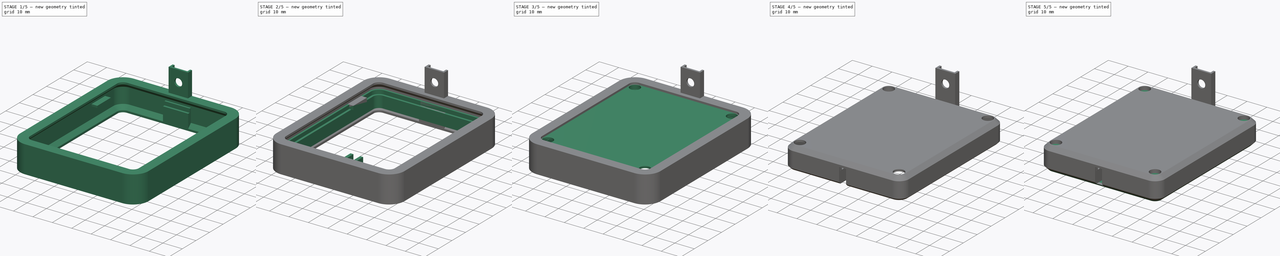
[diagram: build sequence overview — one tinted view per stage of 5, left to right]
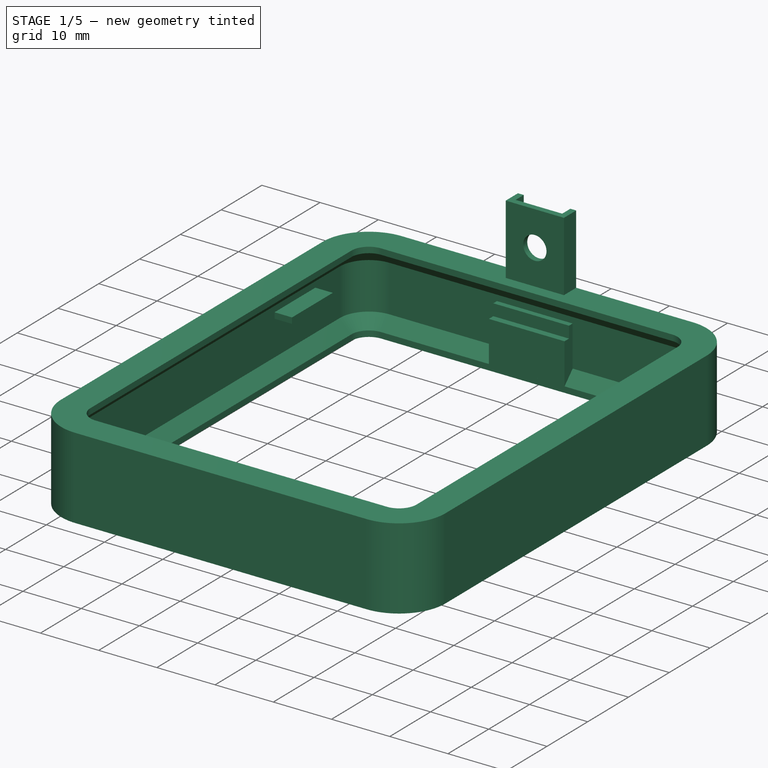
[diagram: stage 1 of 5 — iso view after this stage's code; geometry added in this stage tinted green]
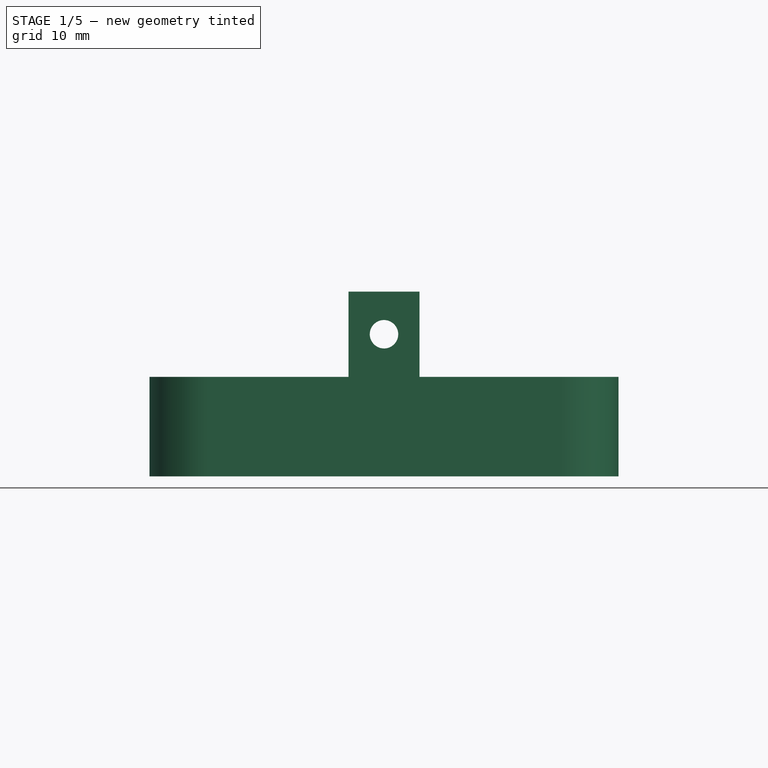
[diagram: stage 1 of 5 — front view after this stage's code; geometry added in this stage tinted green]
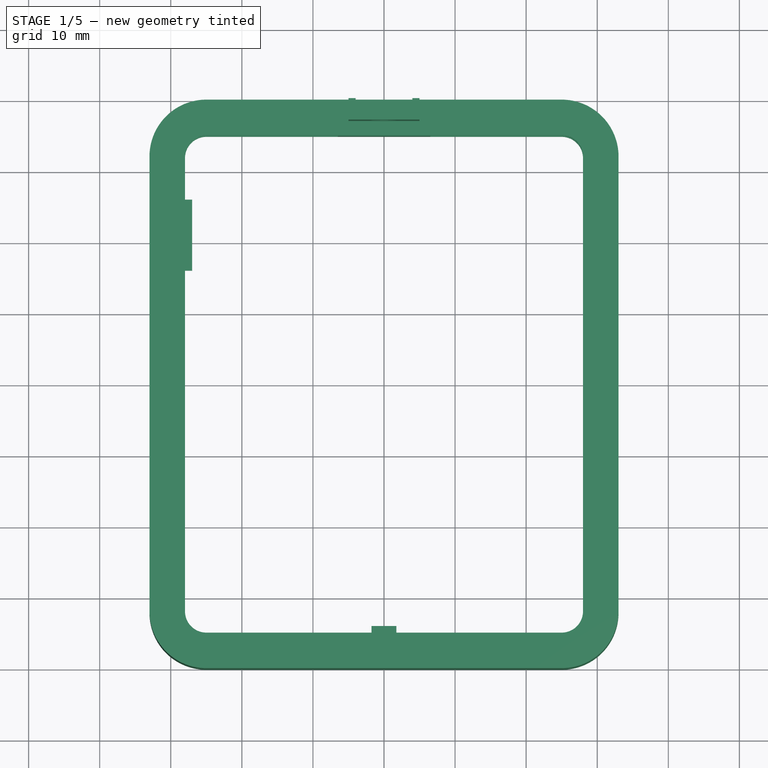
[diagram: stage 1 of 5 — top view after this stage's code; geometry added in this stage tinted green]
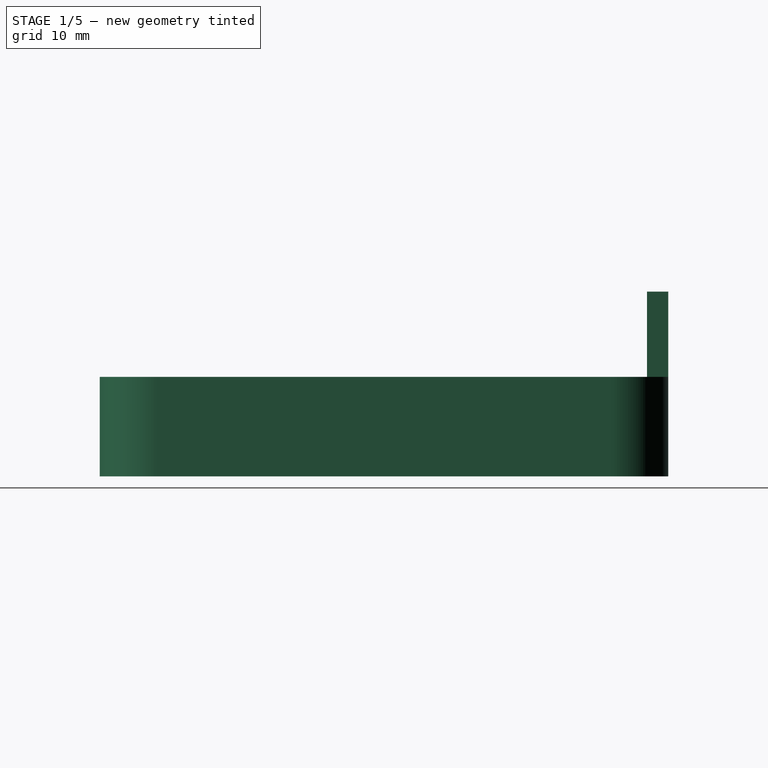
[diagram: stage 1 of 5 — right view after this stage's code; geometry added in this stage tinted green]
FCSTD DOCUMENT  (FreeCAD 0.19R24291 (Git))
Label: servos
License: All rights reserved
LicenseURL: http://en.wikipedia.org/wiki/All_rights_reserved
objects: Sketcher::SketchObject×20, PartDesign::FeatureBase×15, PartDesign::Body×15, Part::Extrusion×13, Part::Cut×9, Part::Sweep×4, Part::Compound×4, Part::MultiFuse×3, Spreadsheet::Sheet×1, Part::Revolution×1, Part::Box×1
note: 85 computed .brp shape members not serialized (recipe doc carries the construction recipe); baked Part::Feature solids carry a one-line shape summary decoded from their .brp

FEATURE [Sketcher::SketchObject] Sketch040  label="profile"
  FullyConstrained = true
  Placement = pos=(0,0,0) rot=(1,0,0;1.5708rad)
  sketch-geometry (8):
    g0: LineSegment StartX=-28 StartY=11 StartZ=0 EndX=-30 EndY=9 EndZ=0
    g1: LineSegment StartX=-30 StartY=9 StartZ=0 EndX=-30 EndY=1 EndZ=0
    g2: LineSegment StartX=-30 StartY=1 StartZ=0 EndX=-28 EndY=-1 EndZ=0
    g3: LineSegment StartX=-28 StartY=-1 StartZ=0 EndX=-28 EndY=-2 EndZ=0
    g4: LineSegment StartX=-28 StartY=-2 StartZ=0 EndX=-33 EndY=-2 EndZ=0
    g5: LineSegment StartX=-33 StartY=-2 StartZ=0 EndX=-33 EndY=12 EndZ=0
    g6: LineSegment StartX=-33 StartY=12 StartZ=0 EndX=-28 EndY=12 EndZ=0
    g7: LineSegment StartX=-28 StartY=12 StartZ=0 EndX=-28 EndY=11 EndZ=0
  constraints (24):
    c: Coincident(g0,g1)
    c: Vertical(g1)
    c: Coincident(g1,g2)
    c: Coincident(g2,g3)
    c: Vertical(g3)
    c: Coincident(g3,g4)
    c: Horizontal(g4)
    c: Coincident(g4,g5)
    c: Vertical(g5)
    c: Coincident(g5,g6)
    c: Horizontal(g6)
    c: Coincident(g6,g7)
    c: Coincident(g7,g0)
    c: Vertical(g7)
    c: DistanceY(g7,g7) = 1
    c: DistanceY(g3,g3) = 1
    c: DistanceX(g4,g4) = 5
    c: DistanceX(g0,g0) = 2
    c: DistanceY(g0,g0) = 2
    c: DistanceY(g2,g1) = 2
    c: DistanceX(g1,g2) = 2
    c: DistanceX(g3) = -28
    c: DistanceY(g3) = -2
    c: DistanceY(g5,g5) = 14
FEATURE [Sketcher::SketchObject] Sketch041  label="path002"
  FullyConstrained = false
  Placement = pos=(0,0,-2) rot=(1,0,0;3.14159rad)
  sketch-geometry (8):
    g0: LineSegment StartX=-25 StartY=35 StartZ=0 EndX=25 EndY=35 EndZ=0
    g1: LineSegment StartX=28 StartY=32 StartZ=0 EndX=28 EndY=-32 EndZ=0
    g2: LineSegment StartX=25 StartY=-35 StartZ=0 EndX=-25 EndY=-35 EndZ=0
    g3: LineSegment StartX=-28 StartY=-32 StartZ=0 EndX=-28 EndY=32 EndZ=0
    g4: ArcOfCircle CenterX=-25 CenterY=32 CenterZ=0 NormalX=0 NormalY=0 NormalZ=1 AngleXU=0 Radius=3 StartAngle=1.5708 EndAngle=3.14159
    g5: ArcOfCircle CenterX=25 CenterY=-32 CenterZ=0 NormalX=0 NormalY=0 NormalZ=1 AngleXU=0 Radius=3 StartAngle=4.71239 EndAngle=6.28319
    g6: ArcOfCircle CenterX=25 CenterY=32 CenterZ=0 NormalX=0 NormalY=0 NormalZ=1 AngleXU=0 Radius=3 StartAngle=0 EndAngle=1.5708
    g7: ArcOfCircle CenterX=-25 CenterY=-32 CenterZ=0 NormalX=0 NormalY=0 NormalZ=1 AngleXU=0 Radius=3 StartAngle=3.14159 EndAngle=4.71239
  constraints (26):
    c: Horizontal(g0)
    c: Horizontal(g2)
    c: Vertical(g1)
    c: Vertical(g3)
    c: Coincident(g3,g4)
    c: Coincident(g0,g4)
    c: Coincident(g5,g1)
    c: Coincident(g5,g2)
    c: Radius(g5) = 3
    c: Radius(g4) = 3
    c: Coincident(g6,g0)
    c: Coincident(g6,g1)
    c: Radius(g6) = 3
    c: Coincident(g7,g3)
    c: Coincident(g7,g2)
    c: Radius(g7) = 3
    c: Horizontal(g7,g5)
    c: Vertical(g4,g7)
    c: Horizontal(g1,g5)
    c: Vertical(g2,g5)
    c: Horizontal(g7,g3)
    c: Horizontal(g6,g1)
    c: Vertical(g0,g6)
    c: Vertical(g4,g0)
    c: DistanceX(g3) = -28
    c: DistanceX(g1) = 28
FEATURE [Part::Sweep] Sweep002  label="bevel"
  Frenet = false
  Sections = -> [Sketch040]
  Solid = true
  Spine = -> Sketch041
  Transition = 1
FEATURE [Sketcher::SketchObject] Sketch044
  FullyConstrained = true
  Placement = pos=(0,0,7) rot=(0,0,1;0rad)
  sketch-geometry (4):
    g0: LineSegment StartX=-31 StartY=26 StartZ=0 EndX=-27 EndY=26 EndZ=0
    g1: LineSegment StartX=-27 StartY=26 StartZ=0 EndX=-27 EndY=16 EndZ=0
    g2: LineSegment StartX=-27 StartY=16 StartZ=0 EndX=-31 EndY=16 EndZ=0
    g3: LineSegment StartX=-31 StartY=16 StartZ=0 EndX=-31 EndY=26 EndZ=0
  constraints (12):
    c: Coincident(g0,g1)
    c: Coincident(g1,g2)
    c: Coincident(g2,g3)
    c: Coincident(g3,g0)
    c: Horizontal(g0)
    c: Horizontal(g2)
    c: Vertical(g1)
    c: Vertical(g3)
    c: DistanceY(g1,g1) = 10
    c: DistanceX(g0,g0) = 4
    c: DistanceX(g0) = -27
    c: DistanceY(g0) = 26
FEATURE [Part::Extrusion] Extrude041
  Base = -> Sketch044
  Dir = (0,0,1)
  DirMode = 2
  FaceMakerClass = Part::FaceMakerBullseye
  LengthFwd = 1
  LengthRev = 0
  Solid = true
  Symmetric = false
FEATURE [Sketcher::SketchObject] Sketch048
  FullyConstrained = true
  sketch-geometry (4):
    g0: LineSegment StartX=-1.75 StartY=-34 StartZ=0 EndX=1.75 EndY=-34 EndZ=0
    g1: LineSegment StartX=1.75 StartY=-34 StartZ=0 EndX=1.75 EndY=-38 EndZ=0
    g2: LineSegment StartX=1.75 StartY=-38 StartZ=0 EndX=-1.75 EndY=-38 EndZ=0
    g3: LineSegment StartX=-1.75 StartY=-38 StartZ=0 EndX=-1.75 EndY=-34 EndZ=0
  constraints (12):
    c: Coincident(g0,g1)
    c: Coincident(g1,g2)
    c: Coincident(g2,g3)
    c: Coincident(g3,g0)
    c: Horizontal(g0)
    c: Horizontal(g2)
    c: Vertical(g1)
    c: Vertical(g3)
    c: DistanceX(g0) = 1.75
    c: DistanceX(g0,g0) = 3.5
    c: DistanceY(g0) = -34
    c: DistanceY(g1,g1) = 4
FEATURE [Part::Extrusion] Extrude045
  Base = -> Sketch048
  Dir = (0,0,1)
  DirMode = 2
  FaceMakerClass = Part::FaceMakerBullseye
  LengthFwd = 8
  LengthRev = 0
  Solid = true
  Symmetric = false
FEATURE [PartDesign::FeatureBase] Clone
  BaseFeature = -> Extrude045
FEATURE [Sketcher::SketchObject] Sketch049
  FullyConstrained = true
  Placement = pos=(0,0,-1) rot=(0,0,1;0rad)
  sketch-geometry (8):
    g0: LineSegment StartX=-5.5 StartY=40 StartZ=0 EndX=-5.5 EndY=37 EndZ=0
    g1: LineSegment StartX=-5.5 StartY=37 StartZ=0 EndX=5.5 EndY=37 EndZ=0
    g2: LineSegment StartX=5.5 StartY=37 StartZ=0 EndX=5.5 EndY=40 EndZ=0
    g3: LineSegment StartX=5.5 StartY=40 StartZ=0 EndX=6.5 EndY=40 EndZ=0
    g4: LineSegment StartX=6.5 StartY=40 StartZ=0 EndX=6.5 EndY=35 EndZ=0
    g5: LineSegment StartX=6.5 StartY=35 StartZ=0 EndX=-6.5 EndY=35 EndZ=0
    g6: LineSegment StartX=-6.5 StartY=35 StartZ=0 EndX=-6.5 EndY=40 EndZ=0
    g7: LineSegment StartX=-6.5 StartY=40 StartZ=0 EndX=-5.5 EndY=40 EndZ=0
  constraints (24):
    c: Vertical(g0)
    c: Coincident(g0,g1)
    c: Horizontal(g1)
    c: Coincident(g1,g2)
    c: Vertical(g2)
    c: Coincident(g2,g3)
    c: Horizontal(g3)
    c: Coincident(g3,g4)
    c: Vertical(g4)
    c: Coincident(g4,g5)
    c: Horizontal(g5)
    c: Coincident(g5,g6)
    c: Vertical(g6)
    c: Coincident(g6,g7)
    c: Coincident(g7,g0)
    c: Horizontal(g7)
    c: DistanceX(g3,g3) = 1
    c: DistanceX(g7,g7) = 1
    c: Horizontal(g0,g2)
    c: DistanceX(g0,g2) = 11
    c: DistanceX(g2) = 5.5
    c: DistanceY(g2,g2) = 3
    c: DistanceY(g4,g4) = 5
    c: DistanceY(g0) = 37
FEATURE [Part::Extrusion] Extrude046
  Base = -> Sketch049
  Dir = (0,0,1)
  DirMode = 2
  FaceMakerClass = Part::FaceMakerBullseye
  LengthFwd = 9
  LengthRev = 0
  Solid = true
  Symmetric = false
FEATURE [Sketcher::SketchObject] Sketch050
  FullyConstrained = true
  Placement = pos=(0,0,0) rot=(0.57735,0.57735,0.57735;2.0944rad)
  sketch-geometry (4):
    g0: LineSegment StartX=36.1 StartY=6 StartZ=0 EndX=34.1 EndY=6 EndZ=0
    g1: LineSegment StartX=34.1 StartY=6 StartZ=0 EndX=34.1 EndY=9 EndZ=0
    g2: LineSegment StartX=34.1 StartY=9 StartZ=0 EndX=36.1 EndY=9 EndZ=0
    g3: LineSegment StartX=36.1 StartY=9 StartZ=0 EndX=36.1 EndY=6 EndZ=0
  constraints (12):
    c: Coincident(g0,g1)
    c: Coincident(g1,g2)
    c: Coincident(g2,g3)
    c: Coincident(g3,g0)
    c: Horizontal(g0)
    c: Horizontal(g2)
    c: Vertical(g1)
    c: Vertical(g3)
    c: DistanceX(g0) = 36.1
    c: DistanceX(g0,g0) = 2
    c: DistanceY(g3,g3) = 3
    c: DistanceY(g0) = 6
FEATURE [Part::Extrusion] Extrude047
  Base = -> Sketch050
  Dir = (1,0,0)
  DirMode = 2
  FaceMakerClass = Part::FaceMakerBullseye
  LengthFwd = 7
  LengthRev = 7
  Solid = true
  Symmetric = false
FEATURE [Part::Cut] Cut040
  Base = -> Extrude046
  Tool = -> Extrude047
FEATURE [Sketcher::SketchObject] Sketch051
  FullyConstrained = true
  Placement = pos=(0,0,-1) rot=(0,0,1;0rad)
  sketch-geometry (8):
    g0: LineSegment StartX=-5 StartY=40 StartZ=0 EndX=-5 EndY=37 EndZ=0
    g1: LineSegment StartX=-5 StartY=37 StartZ=0 EndX=5 EndY=37 EndZ=0
    g2: LineSegment StartX=5 StartY=37 StartZ=0 EndX=5 EndY=40 EndZ=0
    g3: LineSegment StartX=5 StartY=40 StartZ=0 EndX=4 EndY=40 EndZ=0
    g4: LineSegment StartX=4 StartY=40 StartZ=0 EndX=4 EndY=38 EndZ=0
    g5: LineSegment StartX=4 StartY=38 StartZ=0 EndX=-4 EndY=38 EndZ=0
    g6: LineSegment StartX=-4 StartY=38 StartZ=0 EndX=-4 EndY=40 EndZ=0
    g7: LineSegment StartX=-4 StartY=40 StartZ=0 EndX=-5 EndY=40 EndZ=0
  constraints (24):
    c: Vertical(g0)
    c: Coincident(g0,g1)
    c: Horizontal(g1)
    c: Coincident(g1,g2)
    c: Vertical(g2)
    c: Coincident(g2,g3)
    c: Horizontal(g3)
    c: Coincident(g3,g4)
    c: Vertical(g4)
    c: Coincident(g4,g5)
    c: Horizontal(g5)
    c: Coincident(g5,g6)
    c: Vertical(g6)
    c: Coincident(g6,g7)
    c: Coincident(g7,g0)
    c: Horizontal(g7)
    c: DistanceX(g3,g3) = 1
    c: DistanceX(g7,g7) = 1
    c: DistanceX(g4) = 4
    c: DistanceX(g5,g5) = 8
    c: DistanceY(g1) = 37
    c: DistanceY(g2,g2) = 3
    c: Horizontal(g3,g6)
    c: DistanceY(g1,g4) = 1
FEATURE [Part::Extrusion] Extrude048
  Base = -> Sketch051
  Dir = (0,0,1)
  DirMode = 2
  FaceMakerClass = Part::FaceMakerBullseye
  LengthFwd = 25
  LengthRev = 0
  Solid = true
  Symmetric = false
FEATURE [Sketcher::SketchObject] Sketch052
  FullyConstrained = true
  Placement = pos=(0,35,0) rot=(1,0,0;1.5708rad)
  sketch-geometry (1):
    g0: Circle CenterX=0 CenterY=18 CenterZ=0 NormalX=0 NormalY=0 NormalZ=1 AngleXU=0 Radius=2
  constraints (3):
    c: PointOnObject(g0,g-2)
    c: Radius(g0) = 2
    c: DistanceY(g0) = 18
FEATURE [Part::Extrusion] Extrude049
  Base = -> Sketch052
  Dir = (0,-1,-2e-16)
  DirMode = 2
  FaceMakerClass = Part::FaceMakerBullseye
  LengthFwd = 0
  LengthRev = 5
  Solid = true
  Symmetric = false
FEATURE [Part::Cut] Cut041  label="hook"
  Base = -> Extrude048
  Tool = -> Extrude049
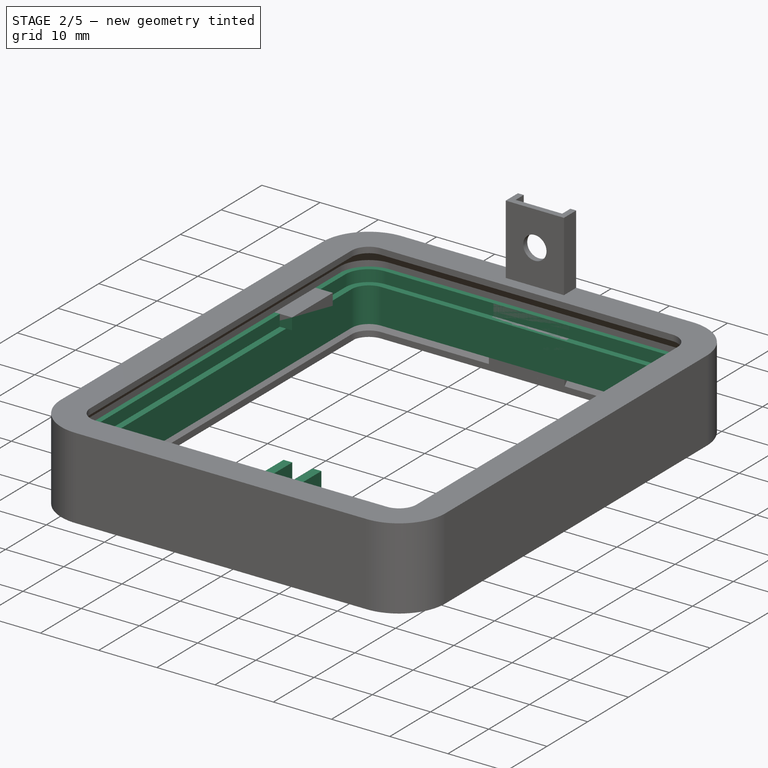
[diagram: stage 2 of 5 — iso view after this stage's code; geometry added in this stage tinted green]
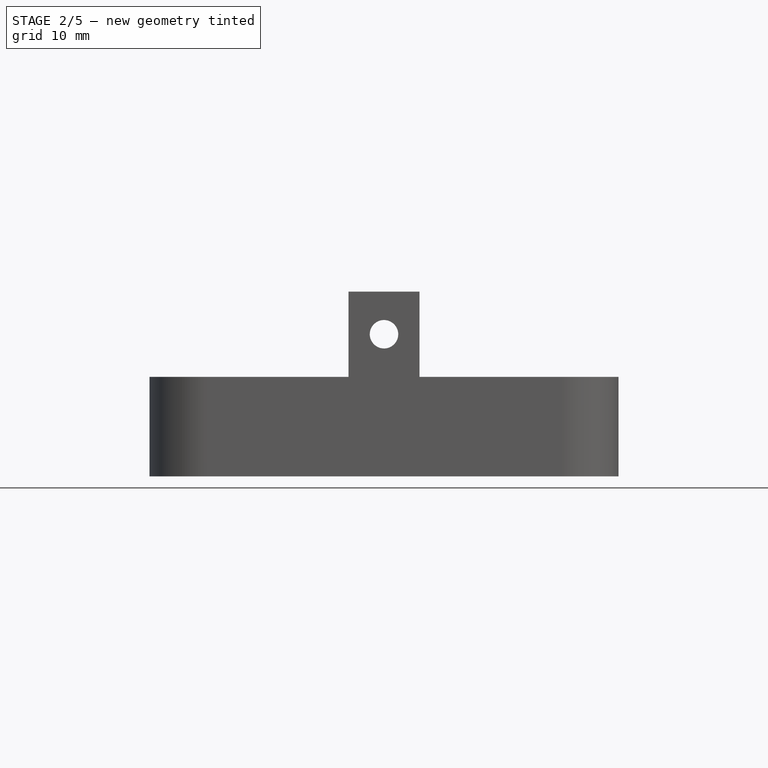
[diagram: stage 2 of 5 — front view after this stage's code; geometry added in this stage tinted green]
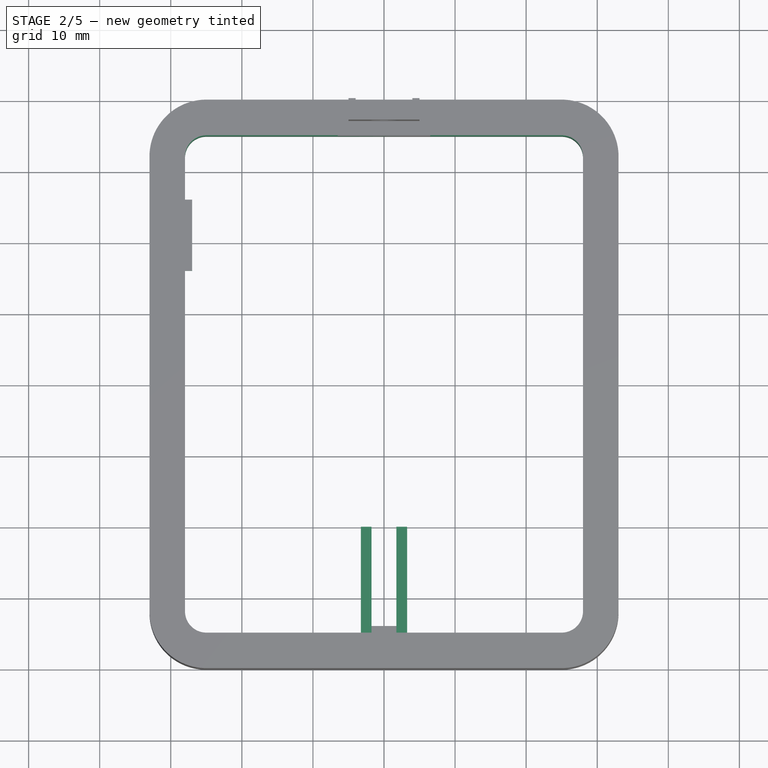
[diagram: stage 2 of 5 — top view after this stage's code; geometry added in this stage tinted green]
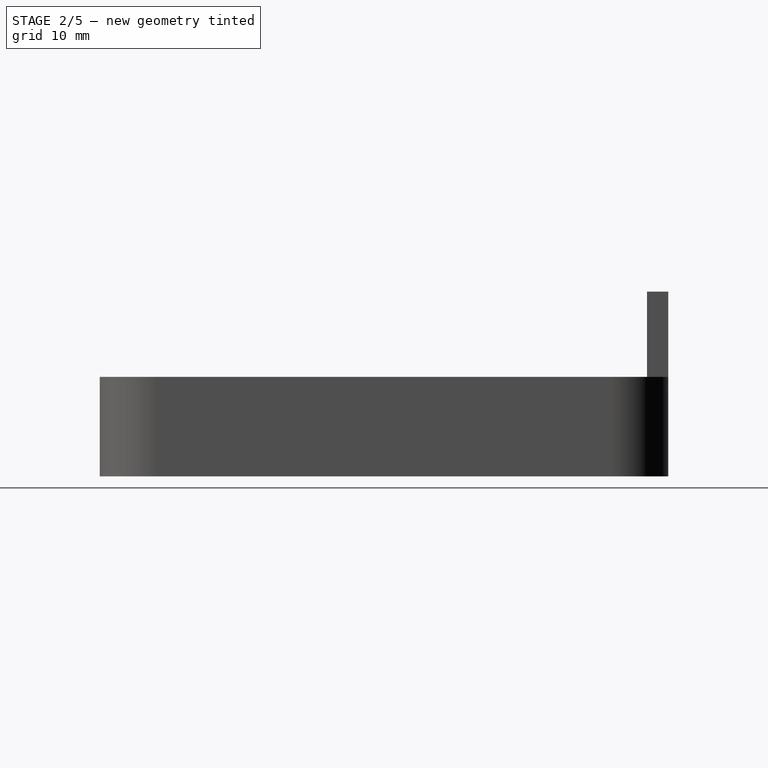
[diagram: stage 2 of 5 — right view after this stage's code; geometry added in this stage tinted green]
FEATURE [PartDesign::Body] Body016  label="screw hole bottom007"
  BaseFeature = -> Extrude038
  Group = -> [Clone016]
  Origin = -> Origin016
  Placement = pos=(25,-32,0) rot=(0,0,1;0rad)
  Tip = -> Clone016
FEATURE [Sketcher::SketchObject] Sketch035  label="profile002"
  FullyConstrained = false
  Placement = pos=(0,0,0) rot=(1,0,0;1.5708rad)
  sketch-geometry (6):
    g0: LineSegment StartX=-28 StartY=6 StartZ=0 EndX=-28.9 EndY=6 EndZ=0
    g1: LineSegment StartX=-28.9 StartY=6 StartZ=0 EndX=-28.9 EndY=8 EndZ=0
    g2: LineSegment StartX=-28 StartY=6 StartZ=0 EndX=-28 EndY=10 EndZ=0
    g3: LineSegment StartX=-28 StartY=10 StartZ=0 EndX=-30 EndY=10 EndZ=0
    g4: LineSegment StartX=-30 StartY=10 StartZ=0 EndX=-30 EndY=8 EndZ=0
    g5: LineSegment StartX=-30 StartY=8 StartZ=0 EndX=-28.9 EndY=8 EndZ=0
  constraints (17):
    c: Coincident(g0,g1)
    c: Horizontal(g0)
    c: Vertical(g1)
    c: DistanceX(g0,g0) = 0.9
    c: DistanceX(g0) = -28
    c: Coincident(g0,g2)
    c: Vertical(g2)
    c: Coincident(g2,g3)
    c: Horizontal(g3)
    c: Coincident(g3,g4)
    c: Vertical(g4)
    c: Coincident(g4,g5)
    c: Coincident(g5,g1)
    c: Horizontal(g5)
    c: DistanceX(g3,g3) = 2
    c: DistanceY(g4,g4) = 2
    c: DistanceY(g1,g1) = 2
FEATURE [Sketcher::SketchObject] Sketch037  label="profile001"
  FullyConstrained = true
  Placement = pos=(0,0,0) rot=(0,0.707107,0.707107;3.14159rad)
  sketch-geometry (6):
    g0: LineSegment StartX=-30 StartY=8 StartZ=0 EndX=-29.1 EndY=8 EndZ=0
    g1: LineSegment StartX=-29.1 StartY=8 StartZ=0 EndX=-29.1 EndY=6 EndZ=0
    g2: LineSegment StartX=-29.1 StartY=6 StartZ=0 EndX=-28 EndY=6 EndZ=0
    g3: LineSegment StartX=-28 StartY=6 StartZ=0 EndX=-28 EndY=0 EndZ=0
    g4: LineSegment StartX=-28 StartY=0 StartZ=0 EndX=-30 EndY=0 EndZ=0
    g5: LineSegment StartX=-30 StartY=0 StartZ=0 EndX=-30 EndY=8 EndZ=0
  constraints (18):
    c: Coincident(g0,g1)
    c: Vertical(g1)
    c: Coincident(g1,g2)
    c: Coincident(g2,g3)
    c: Vertical(g3)
    c: Coincident(g3,g4)
    c: Horizontal(g4)
    c: Coincident(g4,g5)
    c: Coincident(g5,g0)
    c: Vertical(g5)
    c: Horizontal(g0)
    c: Horizontal(g2)
    c: DistanceY(g1,g1) = 2
    c: DistanceX(g4,g4) = 2
    c: DistanceX(g0,g0) = 0.9
    c: DistanceX(g3) = -28
    c: DistanceY(g5,g5) = 8
    c: PointOnObject(g3,g-1)
FEATURE [Sketcher::SketchObject] Sketch038  label="path001"
  FullyConstrained = true
  Placement = pos=(0,0,0) rot=(1,0,0;3.14159rad)
  sketch-geometry (8):
    g0: LineSegment StartX=-25 StartY=35 StartZ=0 EndX=25 EndY=35 EndZ=0
    g1: LineSegment StartX=28 StartY=32 StartZ=0 EndX=28 EndY=-32 EndZ=0
    g2: LineSegment StartX=25 StartY=-35 StartZ=0 EndX=-25 EndY=-35 EndZ=0
    g3: LineSegment StartX=-28 StartY=-32 StartZ=0 EndX=-28 EndY=32 EndZ=0
    g4: ArcOfCircle CenterX=-25 CenterY=32 CenterZ=0 NormalX=0 NormalY=0 NormalZ=1 AngleXU=0 Radius=3 StartAngle=1.5708 EndAngle=3.14159
    g5: ArcOfCircle CenterX=25 CenterY=-32 CenterZ=0 NormalX=0 NormalY=0 NormalZ=1 AngleXU=0 Radius=3 StartAngle=4.71239 EndAngle=6.28319
    g6: ArcOfCircle CenterX=25 CenterY=32 CenterZ=0 NormalX=0 NormalY=0 NormalZ=1 AngleXU=0 Radius=3 StartAngle=0 EndAngle=1.5708
    g7: ArcOfCircle CenterX=-25 CenterY=-32 CenterZ=0 NormalX=0 NormalY=0 NormalZ=1 AngleXU=0 Radius=3 StartAngle=3.14159 EndAngle=4.71239
  constraints (28):
    c: Horizontal(g0)
    c: Horizontal(g2)
    c: Vertical(g1)
    c: Vertical(g3)
    c: Coincident(g4,g0)
    c: Coincident(g4,g3)
    c: Vertical(g4,g0)
    c: Horizontal(g4,g3)
    c: Radius(g4) = 3
    c: Coincident(g5,g1)
    c: Coincident(g5,g2)
    c: Radius(g5) = 3
    c: Horizontal(g5,g1)
    c: Vertical(g5,g2)
    c: Coincident(g6,g0)
    c: Coincident(g6,g1)
    c: Radius(g6) = 3
    c: Horizontal(g6,g1)
    c: Vertical(g6,g0)
    c: Coincident(g7,g3)
    c: Coincident(g7,g2)
    c: Horizontal(g7,g3)
    c: Vertical(g2,g7)
    c: Radius(g7) = 3
    c: DistanceX(g1) = 28
    c: DistanceY(g0) = 35
    c: DistanceY(g2) = -35
    c: DistanceX(g3) = -28
FEATURE [Part::Sweep] Sweep001
  Frenet = false
  Sections = -> [Sketch037]
  Solid = true
  Spine = -> Sketch038
  Transition = 1
FEATURE [PartDesign::Body] Body019  label="bevel003"
  BaseFeature = -> Sweep002
  Group = -> [Clone019]
  Origin = -> Origin019
  Tip = -> Clone019
FEATURE [PartDesign::FeatureBase] Clone020
  BaseFeature = -> Sweep002
FEATURE [PartDesign::Body] Body021  label="bevel005"
  BaseFeature = -> Sweep002
  Group = -> [Clone021]
  Origin = -> Origin021
  Tip = -> Clone021
FEATURE [PartDesign::FeatureBase] Clone022
  BaseFeature = -> Sweep002
FEATURE [Sketcher::SketchObject] Sketch045
  FullyConstrained = true
  Placement = pos=(0,0,8) rot=(0,0,1;0rad)
  sketch-geometry (4):
    g0: LineSegment StartX=-31 StartY=26 StartZ=0 EndX=-27 EndY=26 EndZ=0
    g1: LineSegment StartX=-27 StartY=26 StartZ=0 EndX=-27 EndY=16 EndZ=0
    g2: LineSegment StartX=-27 StartY=16 StartZ=0 EndX=-31 EndY=16 EndZ=0
    g3: LineSegment StartX=-31 StartY=16 StartZ=0 EndX=-31 EndY=26 EndZ=0
  constraints (12):
    c: Coincident(g0,g1)
    c: Coincident(g1,g2)
    c: Coincident(g2,g3)
    c: Coincident(g3,g0)
    c: Horizontal(g0)
    c: Horizontal(g2)
    c: Vertical(g1)
    c: Vertical(g3)
    c: DistanceY(g1,g1) = 10
    c: DistanceX(g0,g0) = 4
    c: DistanceX(g0) = -27
    c: DistanceY(g0) = 26
FEATURE [Part::Extrusion] Extrude042
  Base = -> Sketch045
  Dir = (0,0,1)
  DirMode = 2
  FaceMakerClass = Part::FaceMakerBullseye
  LengthFwd = 0
  LengthRev = 2
  Solid = true
  Symmetric = false
FEATURE [Part::Compound] Compound
  Links = -> [Extrude041,Body020]
FEATURE [Part::Cut] Cut037
  Base = -> Sweep001
  Tool = -> Compound
FEATURE [Sketcher::SketchObject] Sketch047
  FullyConstrained = true
  sketch-geometry (8):
    g0: LineSegment StartX=-1.75 StartY=-35 StartZ=0 EndX=-3.25 EndY=-35 EndZ=0
    g1: LineSegment StartX=-3.25 StartY=-35 StartZ=0 EndX=-3.25 EndY=-20 EndZ=0
    g2: LineSegment StartX=-3.25 StartY=-20 StartZ=0 EndX=-1.75 EndY=-20 EndZ=0
    g3: LineSegment StartX=-1.75 StartY=-20 StartZ=0 EndX=-1.75 EndY=-35 EndZ=0
    g4: LineSegment StartX=1.75 StartY=-35 StartZ=0 EndX=3.25 EndY=-35 EndZ=0
    g5: LineSegment StartX=3.25 StartY=-35 StartZ=0 EndX=3.25 EndY=-20 EndZ=0
    g6: LineSegment StartX=3.25 StartY=-20 StartZ=0 EndX=1.75 EndY=-20 EndZ=0
    g7: LineSegment StartX=1.75 StartY=-20 StartZ=0 EndX=1.75 EndY=-35 EndZ=0
  constraints (24):
    c: Coincident(g0,g1)
    c: Coincident(g1,g2)
    c: Coincident(g2,g3)
    c: Coincident(g3,g0)
    c: Horizontal(g0)
    c: Horizontal(g2)
    c: Vertical(g1)
    c: Vertical(g3)
    c: Coincident(g4,g5)
    c: Coincident(g5,g6)
    c: Coincident(g6,g7)
    c: Coincident(g7,g4)
    c: Horizontal(g4)
    c: Horizontal(g6)
    c: Vertical(g5)
    c: Vertical(g7)
    c: DistanceX(g2,g6) = 3.5
    c: DistanceX(g6) = 1.75
    c: DistanceX(g6,g6) = 1.5
    c: DistanceX(g2,g2) = 1.5
    c: DistanceY(g4) = -35
    c: Horizontal(g2,g6)
    c: Horizontal(g4,g0)
    c: DistanceY(g7,g7) = 15
FEATURE [Part::Extrusion] Extrude044
  Base = -> Sketch047
  Dir = (0,0,1)
  DirMode = 2
  FaceMakerClass = Part::FaceMakerBullseye
  LengthFwd = 6
  LengthRev = 0
  Solid = true
  Symmetric = false
FEATURE [Part::Cut] Cut039
  Base = -> Cut037
  Tool = -> Extrude045
FEATURE [PartDesign::Body] Body
  BaseFeature = -> Extrude045
  Group = -> [Clone]
  Origin = -> Origin
  Tip = -> Clone
FEATURE [Part::Compound] Compound010
  Links = -> [Body022,Extrude042,Body]
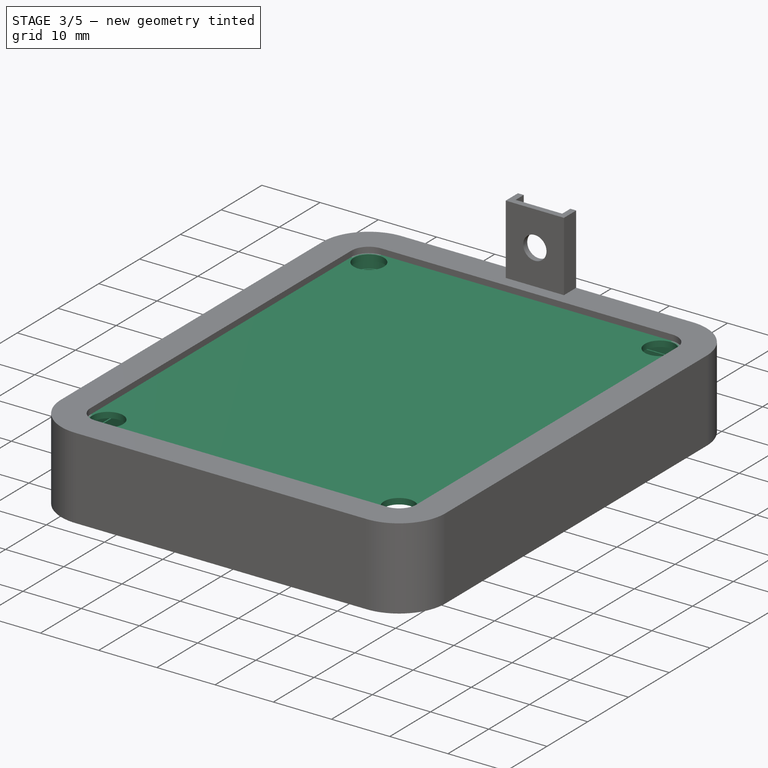
[diagram: stage 3 of 5 — iso view after this stage's code; geometry added in this stage tinted green]
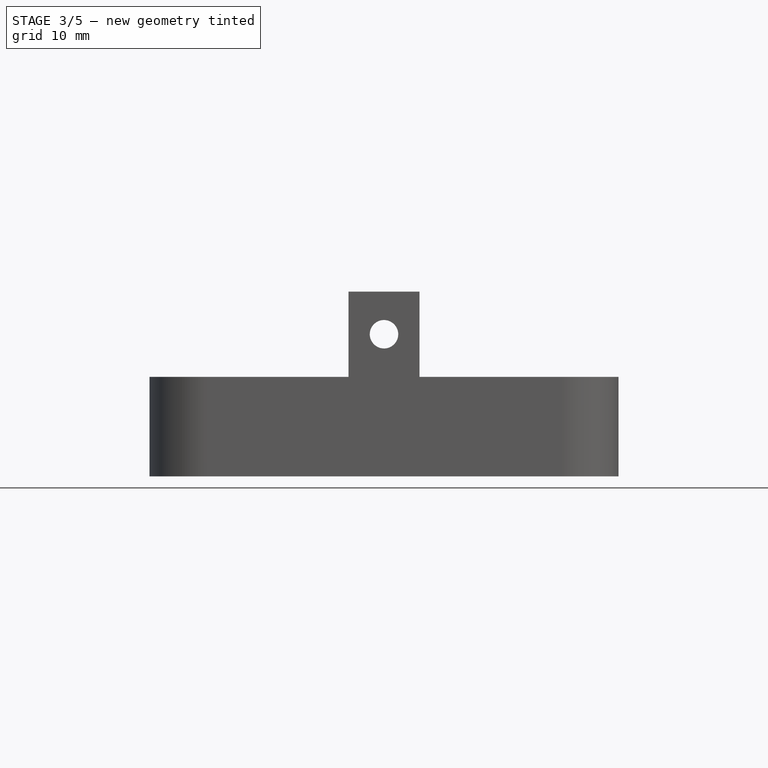
[diagram: stage 3 of 5 — front view after this stage's code; geometry added in this stage tinted green]
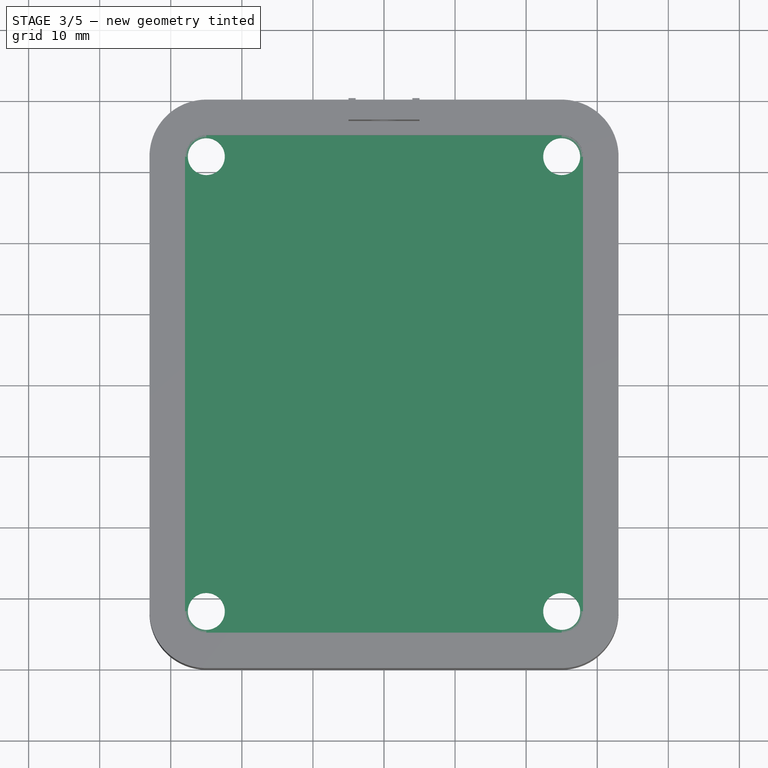
[diagram: stage 3 of 5 — top view after this stage's code; geometry added in this stage tinted green]
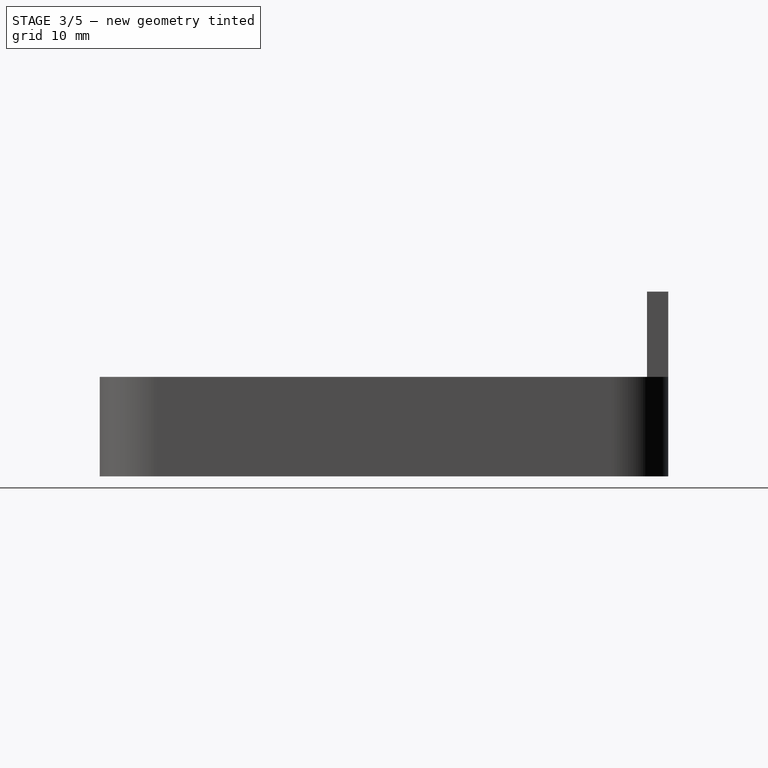
[diagram: stage 3 of 5 — right view after this stage's code; geometry added in this stage tinted green]
FEATURE [Sketcher::SketchObject] Sketch034
  FullyConstrained = true
  Placement = pos=(0,0,10) rot=(0,0,1;0rad)
  expr: Constraints[10] = Spreadsheet.screw_r1
  sketch-geometry (8):
    g0: LineSegment StartX=-30 StartY=37 StartZ=0 EndX=30 EndY=37 EndZ=0
    g1: LineSegment StartX=30 StartY=37 StartZ=0 EndX=30 EndY=-37 EndZ=0
    g2: LineSegment StartX=30 StartY=-37 StartZ=0 EndX=-30 EndY=-37 EndZ=0
    g3: LineSegment StartX=-30 StartY=-37 StartZ=0 EndX=-30 EndY=37 EndZ=0
    g4: Circle CenterX=-25 CenterY=32 CenterZ=0 NormalX=0 NormalY=0 NormalZ=1 AngleXU=0 Radius=2.6
    g5: Circle CenterX=25 CenterY=32 CenterZ=0 NormalX=0 NormalY=0 NormalZ=1 AngleXU=0 Radius=2.6
    g6: Circle CenterX=-25 CenterY=-32 CenterZ=0 NormalX=0 NormalY=0 NormalZ=1 AngleXU=0 Radius=2.6
    g7: Circle CenterX=25 CenterY=-32 CenterZ=0 NormalX=0 NormalY=0 NormalZ=1 AngleXU=0 Radius=2.6
  constraints (24):
    c: Coincident(g0,g1)
    c: Coincident(g2,g3)
    c: Coincident(g3,g0)
    c: Horizontal(g0)
    c: Horizontal(g2)
    c: Vertical(g1)
    c: Vertical(g3)
    c: DistanceX(g0) = -30
    c: Coincident(g1,g2)
    c: DistanceX(g0) = 30
    c: Radius(g4) = 2.6
    c: Equal(g4,g5) = 2.6
    c: Equal(g4,g6) = 2.6
    c: Equal(g4,g7) = 2.6
    c: Horizontal(g6,g7)
    c: Vertical(g5,g7)
    c: Horizontal(g5,g4)
    c: Vertical(g4,g6)
    c: DistanceX(g0,g4) = 5
    c: DistanceY(g4,g0) = 5
    c: DistanceX(g7,g1) = 5
    c: DistanceY(g1,g7) = 5
    c: DistanceY(g0) = 37
    c: DistanceY(g2) = -37
FEATURE [Part::Extrusion] Extrude039  label="top003"
  Base = -> Sketch034
  Dir = (0,0,1)
  DirMode = 2
  FaceMakerClass = Part::FaceMakerBullseye
  LengthFwd = 1
  LengthRev = 0
  Solid = true
  Symmetric = false
FEATURE [PartDesign::Body] Body017  label="bevel001"
  BaseFeature = -> Sweep002
  Group = -> [Clone017]
  Origin = -> Origin017
  Tip = -> Clone017
FEATURE [PartDesign::FeatureBase] Clone018
  BaseFeature = -> Sweep002
FEATURE [PartDesign::Body] Body018  label="bevel002"
  BaseFeature = -> Sweep002
  Group = -> [Clone018]
  Origin = -> Origin018
  Tip = -> Clone018
FEATURE [PartDesign::FeatureBase] Clone019
  BaseFeature = -> Sweep002
FEATURE [PartDesign::FeatureBase] Clone023
  BaseFeature = -> Sketch038
  Placement = pos=(0,0,-2) rot=(1,0,0;3.14159rad)
FEATURE [PartDesign::Body] Body023  label="path003"
  BaseFeature = -> Sketch038
  Group = -> [Clone023]
  Origin = -> Origin023
  Tip = -> Clone023
FEATURE [Part::Sweep] Sweep
  Frenet = false
  Sections = -> [Sketch035]
  Solid = true
  Spine = -> Body023
  Transition = 1
FEATURE [PartDesign::FeatureBase] Clone024
  BaseFeature = -> Sketch038
  Placement = pos=(0,0,-2) rot=(1,0,0;3.14159rad)
FEATURE [PartDesign::Body] Body024  label="path"
  BaseFeature = -> Sketch038
  Group = -> [Clone024]
  Origin = -> Origin024
  Tip = -> Clone024
FEATURE [Sketcher::SketchObject] Sketch043  label="profile003"
  FullyConstrained = true
  Placement = pos=(0,0,0) rot=(1,0,0;1.5708rad)
  sketch-geometry (4):
    g0: LineSegment StartX=-27.8 StartY=6 StartZ=0 EndX=-29.2 EndY=6 EndZ=0
    g1: LineSegment StartX=-29.2 StartY=6 StartZ=0 EndX=-29.2 EndY=8.6 EndZ=0
    g2: LineSegment StartX=-29.2 StartY=8.6 StartZ=0 EndX=-27.8 EndY=8.6 EndZ=0
    g3: LineSegment StartX=-27.8 StartY=8.6 StartZ=0 EndX=-27.8 EndY=6 EndZ=0
  constraints (12):
    c: Coincident(g0,g1)
    c: Coincident(g1,g2)
    c: Coincident(g2,g3)
    c: Coincident(g3,g0)
    c: Horizontal(g0)
    c: Horizontal(g2)
    c: Vertical(g1)
    c: Vertical(g3)
    c: DistanceX(g0,g0) = 1.4
    c: DistanceY(g3,g3) = 2.6
    c: DistanceX(g0) = -27.8
    c: DistanceY(g0) = 6
FEATURE [Part::Sweep] Sweep003
  Frenet = false
  Sections = -> [Sketch043]
  Solid = true
  Spine = -> Body024
  Transition = 1
FEATURE [Part::Cut] Cut
  Base = -> Extrude039
  Tool = -> Body019
FEATURE [Part::Box] Box  label="circuit"
  AttacherType = Attacher::AttachEngine3D
  Height = 1
  Length = 23
  Placement = pos=(-16,-2,0) rot=(0,0,1;0rad)
  Width = 30
FEATURE [Sketcher::SketchObject] Sketch
  FullyConstrained = false
  sketch-geometry (24):
    g0: LineSegment StartX=1 StartY=28 StartZ=0 EndX=1 EndY=29.5 EndZ=0
    g1: LineSegment StartX=1 StartY=29.5 StartZ=0 EndX=8.5 EndY=29.5 EndZ=0
    g2: LineSegment StartX=8.5 StartY=29.5 StartZ=0 EndX=8.5 EndY=22 EndZ=0
    g3: LineSegment StartX=8.5 StartY=22 StartZ=0 EndX=7 EndY=22 EndZ=0
    g4: LineSegment StartX=7 StartY=22 StartZ=0 EndX=7 EndY=28 EndZ=0
    g5: LineSegment StartX=7 StartY=28 StartZ=0 EndX=1 EndY=28 EndZ=0
    g6: LineSegment StartX=7 StartY=-2 StartZ=0 EndX=7 EndY=4 EndZ=0
    g7: LineSegment StartX=7 StartY=4 StartZ=0 EndX=8.5 EndY=4 EndZ=0
    g8: LineSegment StartX=8.5 StartY=4 StartZ=0 EndX=8.5 EndY=-3.5 EndZ=0
    g9: LineSegment StartX=8.5 StartY=-3.5 StartZ=0 EndX=5 EndY=-3.5 EndZ=0
    g10: LineSegment StartX=5 StartY=-3.5 StartZ=0 EndX=5 EndY=-2 EndZ=0
    g11: LineSegment StartX=5 StartY=-2 StartZ=0 EndX=7 EndY=-2 EndZ=0
    g12: LineSegment StartX=-16 StartY=4 StartZ=0 EndX=-16 EndY=-2 EndZ=0
    g13: LineSegment StartX=-16 StartY=-2 StartZ=0 EndX=-14 EndY=-2 EndZ=0
    g14: LineSegment StartX=-14 StartY=-2 StartZ=0 EndX=-14 EndY=-3.5 EndZ=0
    g15: LineSegment StartX=-14 StartY=-3.5 StartZ=0 EndX=-17.5 EndY=-3.5 EndZ=0
    g16: LineSegment StartX=-17.5 StartY=-3.5 StartZ=0 EndX=-17.5 EndY=4 EndZ=0
    g17: LineSegment StartX=-17.5 StartY=4 StartZ=0 EndX=-16 EndY=4 EndZ=0
    g18: LineSegment StartX=-16 StartY=26 StartZ=0 EndX=-16 EndY=28 EndZ=0
    g19: LineSegment StartX=-16 StartY=28 StartZ=0 EndX=-10 EndY=28 EndZ=0
    g20: LineSegment StartX=-10 StartY=28 StartZ=0 EndX=-10 EndY=29.5 EndZ=0
    g21: LineSegment StartX=-10 StartY=29.5 StartZ=0 EndX=-17.5 EndY=29.5 EndZ=0
    g22: LineSegment StartX=-17.5 StartY=29.5 StartZ=0 EndX=-17.5 EndY=26 EndZ=0
    g23: LineSegment StartX=-17.5 StartY=26 StartZ=0 EndX=-16 EndY=26 EndZ=0
  constraints (64):
    c: Vertical(g0)
    c: Coincident(g0,g1)
    c: Horizontal(g1)
    c: Coincident(g1,g2)
    c: Vertical(g2)
    c: Coincident(g2,g3)
    c: Horizontal(g3)
    c: Coincident(g3,g4)
    c: Vertical(g4)
    c: Coincident(g4,g5)
    c: Coincident(g5,g0)
    c: Horizontal(g5)
    c: Vertical(g6)
    c: Coincident(g6,g7)
    c: Horizontal(g7)
    c: Coincident(g7,g8)
    c: Vertical(g8)
    c: Coincident(g8,g9)
    c: Horizontal(g9)
    c: Coincident(g9,g10)
    c: Vertical(g10)
    c: Coincident(g10,g11)
    c: Coincident(g11,g6)
    c: Horizontal(g11)
    c: Vertical(g12)
    c: Coincident(g12,g13)
    c: Horizontal(g13)
    c: Coincident(g13,g14)
    c: Vertical(g14)
    c: Coincident(g14,g15)
    c: Horizontal(g15)
    c: Coincident(g15,g16)
    c: Vertical(g16)
    c: Coincident(g16,g17)
    c: Coincident(g17,g12)
    c: Horizontal(g17)
    c: Vertical(g18)
    c: Coincident(g18,g19)
    c: Horizontal(g19)
    c: Coincident(g19,g20)
    c: Vertical(g20)
    c: Coincident(g20,g21)
    c: Horizontal(g21)
    c: Coincident(g21,g22)
    c: Vertical(g22)
    c: Coincident(g22,g23)
    c: Coincident(g23,g18)
    c: Horizontal(g23)
    c: Vertical(g2,g7)
    c: Vertical(g6,g3)
    c: Horizontal(g0,g19)
    c: Horizontal(g20,g0)
    c: Vertical(g18,g12)
    c: Vertical(g16,g22)
    c: Horizontal(g14,g9)
    c: Horizontal(g13,g10)
    c: DistanceY(g19) = 28
    c: DistanceY(g13) = -2
    c: DistanceX(g12) = -16
    c: DistanceX(g4) = 7
    c: DistanceY(g0,g0) = 1.5
    c: DistanceX(g3,g3) = 1.5
    c: DistanceX(g17,g17) = 1.5
    c: DistanceY(g14,g14) = 1.5
FEATURE [Part::Extrusion] Extrude
  Base = -> Sketch
  Dir = (0,0,1)
  DirMode = 2
  FaceMakerClass = Part::FaceMakerBullseye
  LengthFwd = 3
  LengthRev = 0
  Solid = true
  Symmetric = false
FEATURE [Sketcher::SketchObject] Sketch046
  FullyConstrained = true
  Placement = pos=(0,0,6) rot=(0,0,1;0rad)
  sketch-geometry (4):
    g0: LineSegment StartX=-30 StartY=26 StartZ=0 EndX=-28 EndY=26 EndZ=0
    g1: LineSegment StartX=-28 StartY=26 StartZ=0 EndX=-28 EndY=16 EndZ=0
    g2: LineSegment StartX=-28 StartY=16 StartZ=0 EndX=-30 EndY=16 EndZ=0
    g3: LineSegment StartX=-30 StartY=16 StartZ=0 EndX=-30 EndY=26 EndZ=0
  constraints (12):
    c: Coincident(g0,g1)
    c: Coincident(g1,g2)
    c: Coincident(g2,g3)
    c: Coincident(g3,g0)
    c: Horizontal(g0)
    c: Horizontal(g2)
    c: Vertical(g1)
    c: Vertical(g3)
    c: DistanceY(g1,g1) = 10
    c: DistanceX(g0,g0) = 2
    c: DistanceX(g0) = -28
    c: DistanceY(g0) = 26
FEATURE [Part::Extrusion] Extrude043
  Base = -> Sketch046
  Dir = (0,0,1)
  DirMode = 2
  FaceMakerClass = Part::FaceMakerBullseye
  LengthFwd = 1
  LengthRev = 0
  Solid = true
  Symmetric = false
FEATURE [Part::Cut] Cut038
  Base = -> Sweep
  Tool = -> Compound010
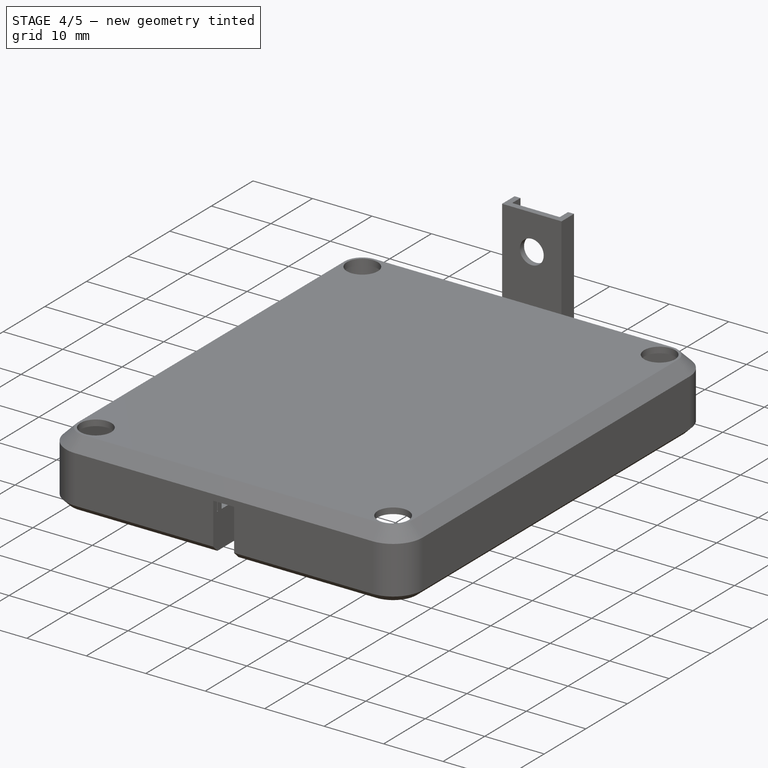
[diagram: stage 4 of 5 — iso view after this stage's code; geometry added in this stage tinted green]
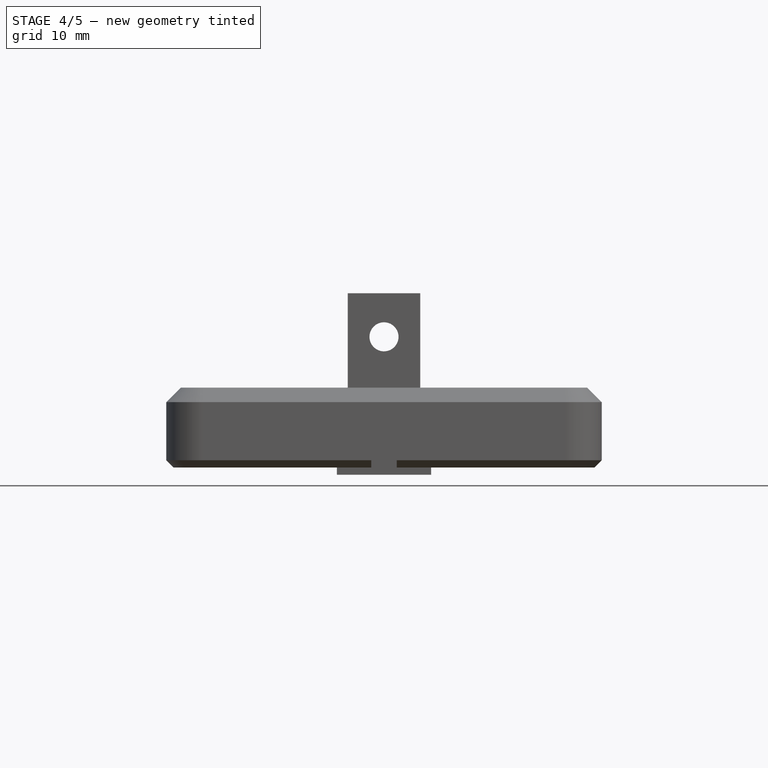
[diagram: stage 4 of 5 — front view after this stage's code; geometry added in this stage tinted green]
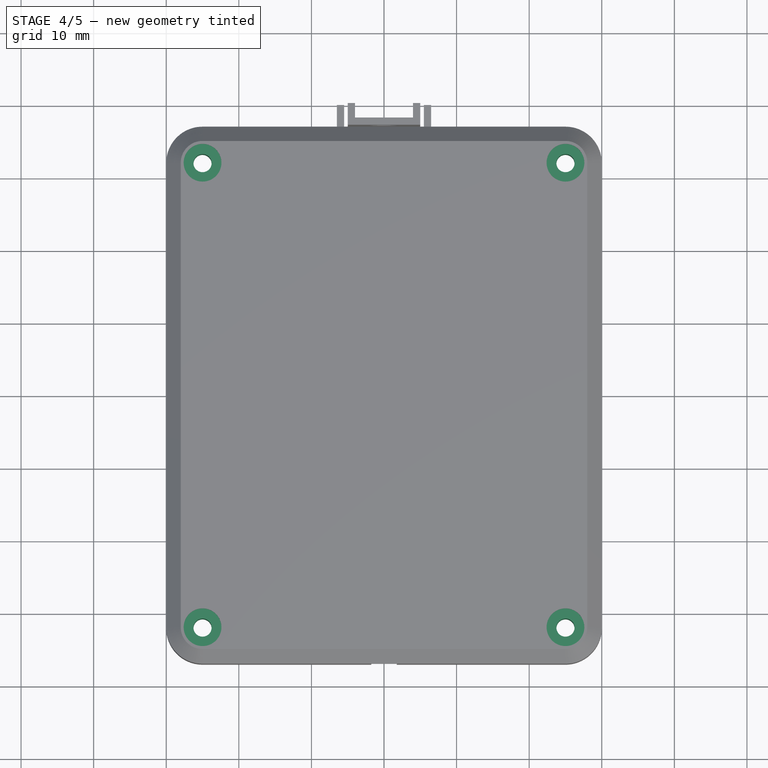
[diagram: stage 4 of 5 — top view after this stage's code; geometry added in this stage tinted green]
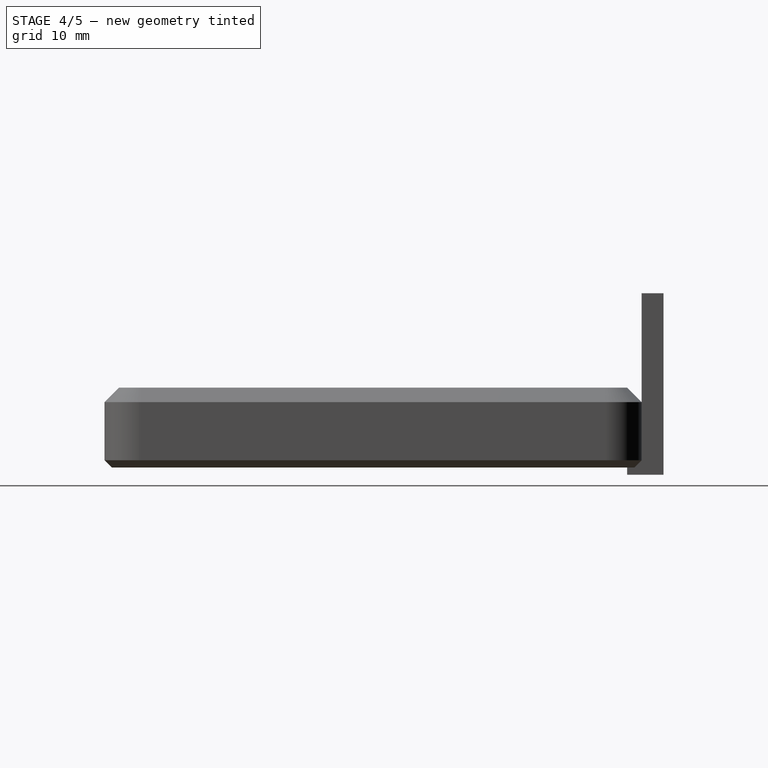
[diagram: stage 4 of 5 — right view after this stage's code; geometry added in this stage tinted green]
FEATURE [Spreadsheet::Sheet] Spreadsheet
  cells = A1=screw_r1; B1(screw_r1)=2.6; A2=screw_r2; B2(screw_r2)=1.6; A3=screw_r3; B3(screw_r3)=1.25
FEATURE [Sketcher::SketchObject] Sketch033
  FullyConstrained = true
  Placement = pos=(0,0,0) rot=(1,0,0;1.5708rad)
  expr: Constraints[8] = Spreadsheet.screw_r2
  expr: Constraints[9] = Spreadsheet.screw_r1
  sketch-geometry (8):
    g0: LineSegment StartX=1.6 StartY=3 StartZ=0 EndX=1.6 EndY=2 EndZ=0
    g1: LineSegment StartX=2.6 StartY=0 StartZ=0 EndX=4.6 EndY=0 EndZ=0
    g2: LineSegment StartX=4.6 StartY=0 StartZ=0 EndX=4.6 EndY=3 EndZ=0
    g3: LineSegment StartX=4.6 StartY=3 StartZ=0 EndX=1.6 EndY=3 EndZ=0
    g4: LineSegment StartX=1.6 StartY=2 StartZ=0 EndX=0 EndY=2 EndZ=0
    g5: LineSegment StartX=0 StartY=2 StartZ=0 EndX=0 EndY=1.8 EndZ=0
    g6: LineSegment StartX=0 StartY=1.8 StartZ=0 EndX=2.6 EndY=1.8 EndZ=0
    g7: LineSegment StartX=2.6 StartY=1.8 StartZ=0 EndX=2.6 EndY=0 EndZ=0
  constraints (24):
    c: Vertical(g0)
    c: PointOnObject(g1,g-1)
    c: Horizontal(g1)
    c: Coincident(g1,g2)
    c: Vertical(g2)
    c: Coincident(g2,g3)
    c: Coincident(g3,g0)
    c: Horizontal(g3)
    c: DistanceX(g-1,g0) = 1.6
    c: DistanceX(g-1,g1) = 2.6
    c: DistanceX(g1,g1) = 2
    c: DistanceY(g0,g0) = 1
    c: Coincident(g0,g4)
    c: Horizontal(g4)
    c: Coincident(g4,g5)
    c: PointOnObject(g5,g-2)
    c: Vertical(g5)
    c: Coincident(g5,g6)
    c: Horizontal(g6)
    c: Coincident(g7,g6)
    c: Coincident(g7,g1)
    c: Vertical(g7)
    c: DistanceY(g5,g4) = 0.2
    c: DistanceY(g1,g0) = 2
FEATURE [Part::Revolution] Revolve  label="screw hole bottom"
  Angle = 360
  Axis = (0,0,1)
  Base = (0,0,0)
  FaceMakerClass = Part::FaceMakerBullseye
  Placement = pos=(-25,32,11) rot=(1,0,0;3.14159rad)
  Solid = true
  Source = -> Sketch033
  Symmetric = false
FEATURE [Sketcher::SketchObject] Sketch004
  FullyConstrained = true
  expr: Constraints[3] = Spreadsheet.screw_r3
  expr: Constraints[0] = Spreadsheet.screw_r3 + 2
  sketch-geometry (2):
    g0: Circle CenterX=0 CenterY=0 CenterZ=0 NormalX=0 NormalY=0 NormalZ=1 AngleXU=0 Radius=3.25
    g1: Circle CenterX=0 CenterY=0 CenterZ=0 NormalX=0 NormalY=0 NormalZ=1 AngleXU=0 Radius=1.25
  constraints (4):
    c: Radius(g0) = 3.25
    c: Coincident(g0,g-1)
    c: Coincident(g1,g0)
    c: Radius(g1) = 1.25
FEATURE [Part::Extrusion] Extrude038  label="screw hole bottom004"
  Base = -> Sketch004
  Dir = (0,0,1)
  DirMode = 2
  FaceMakerClass = Part::FaceMakerBullseye
  LengthFwd = 0
  LengthRev = 8
  Placement = pos=(-25,32,8) rot=(1,0,0;0rad)
  Solid = true
  Symmetric = false
FEATURE [PartDesign::Body] Body012  label="screw hole bottom002"
  BaseFeature = -> Revolve
  Group = -> [Clone012]
  Origin = -> Origin012
  Placement = pos=(-25,-32,0) rot=(0,0,1;0rad)
  Tip = -> Clone012
FEATURE [PartDesign::FeatureBase] Clone013
  BaseFeature = -> Revolve
  Placement = pos=(0,0,11) rot=(1,0,0;3.14159rad)
FEATURE [PartDesign::Body] Body013  label="screw hole bottom003"
  BaseFeature = -> Revolve
  Group = -> [Clone013]
  Origin = -> Origin013
  Placement = pos=(25,32,0) rot=(0,0,1;0rad)
  Tip = -> Clone013
FEATURE [PartDesign::FeatureBase] Clone014
  BaseFeature = -> Extrude038
  Placement = pos=(0,0,8) rot=(1,0,0;0rad)
FEATURE [PartDesign::Body] Body014  label="screw hole bottom005"
  BaseFeature = -> Extrude038
  Group = -> [Clone014]
  Origin = -> Origin014
  Placement = pos=(25,32,0) rot=(0,0,1;0rad)
  Tip = -> Clone014
FEATURE [PartDesign::FeatureBase] Clone015
  BaseFeature = -> Extrude038
  Placement = pos=(0,0,8) rot=(1,0,0;0rad)
FEATURE [PartDesign::Body] Body015  label="screw hole bottom006"
  BaseFeature = -> Extrude038
  Group = -> [Clone015]
  Origin = -> Origin015
  Placement = pos=(-25,-32,0) rot=(0,0,1;0rad)
  Tip = -> Clone015
FEATURE [PartDesign::FeatureBase] Clone016
  BaseFeature = -> Extrude038
  Placement = pos=(0,0,8) rot=(1,0,0;0rad)
FEATURE [Part::MultiFuse] Fusion026
  Shapes = -> [Body014,Body015,Body016,Extrude038]
FEATURE [Part::MultiFuse] Fusion029
  Shapes = -> [Body018,Sweep003]
FEATURE [Part::Cut] Cut033
  Base = -> Fusion026
  Tool = -> Fusion029
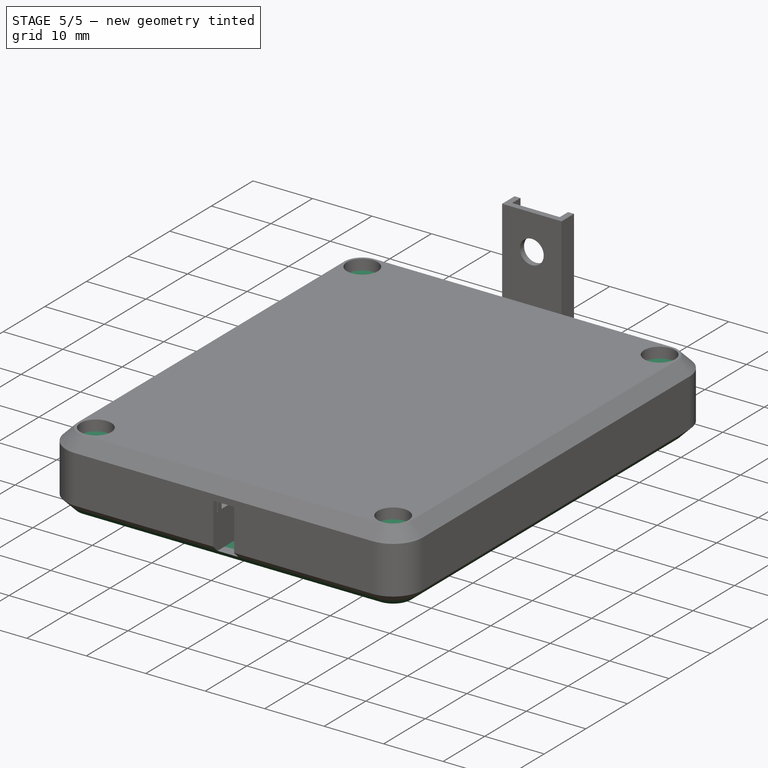
[diagram: stage 5 of 5 — iso view after this stage's code; geometry added in this stage tinted green]
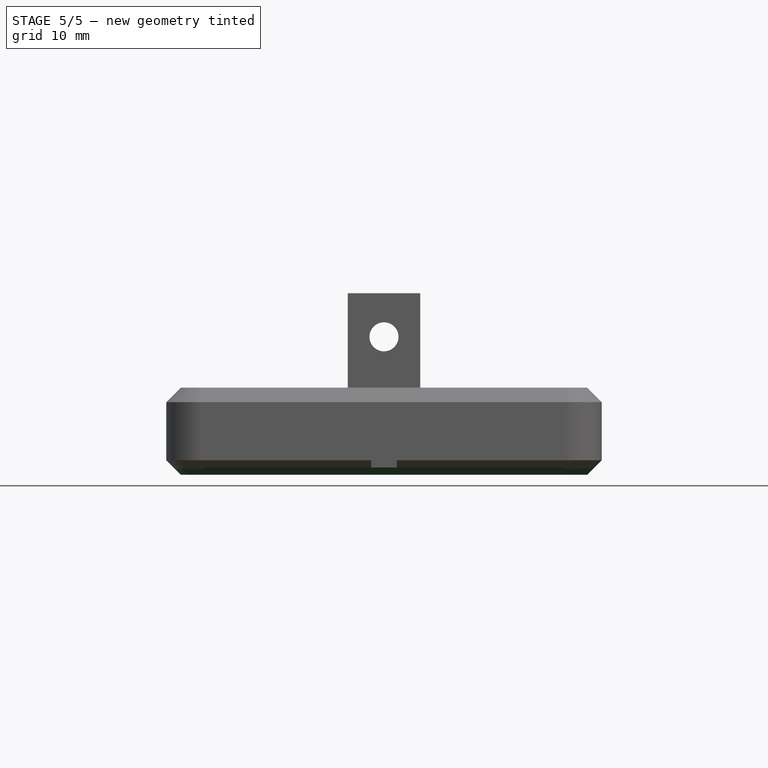
[diagram: stage 5 of 5 — front view after this stage's code; geometry added in this stage tinted green]
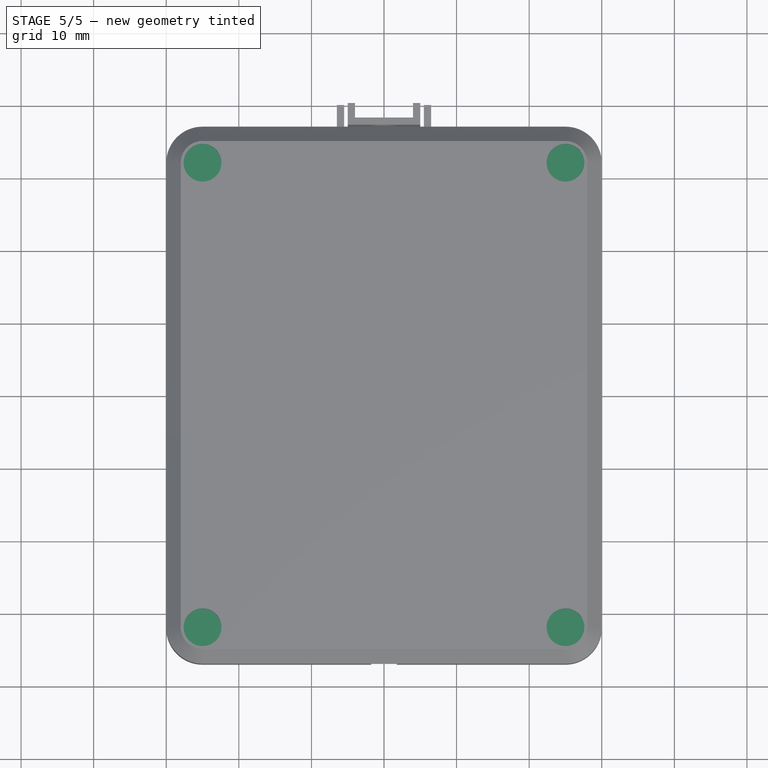
[diagram: stage 5 of 5 — top view after this stage's code; geometry added in this stage tinted green]
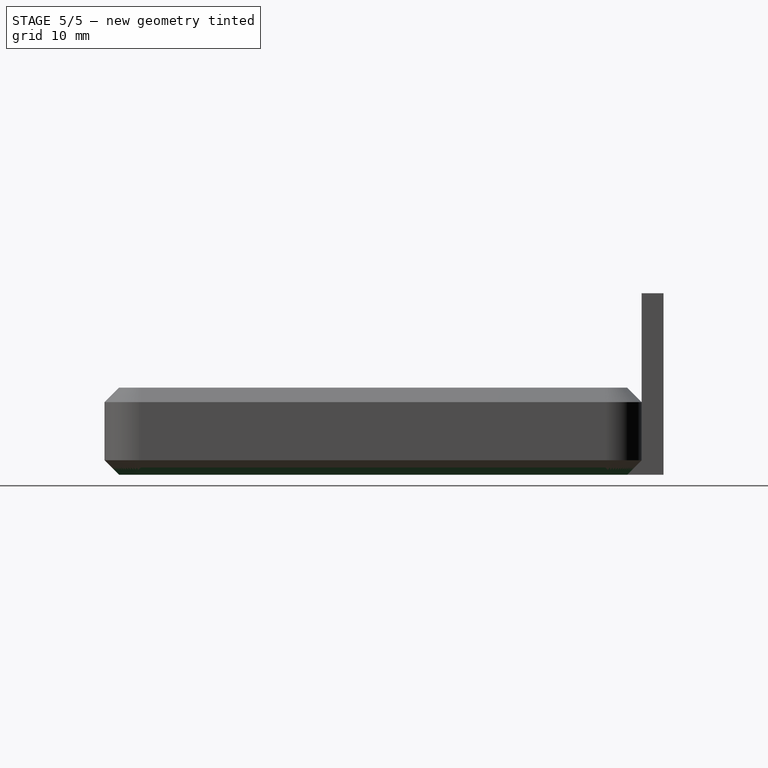
[diagram: stage 5 of 5 — right view after this stage's code; geometry added in this stage tinted green]
FEATURE [PartDesign::FeatureBase] Clone011
  BaseFeature = -> Revolve
  Placement = pos=(0,0,11) rot=(1,0,0;3.14159rad)
FEATURE [PartDesign::Body] Body011  label="screw hole bottom001"
  BaseFeature = -> Revolve
  Group = -> [Clone011]
  Origin = -> Origin011
  Placement = pos=(25,-32,0) rot=(0,0,1;0rad)
  Tip = -> Clone011
FEATURE [PartDesign::FeatureBase] Clone012
  BaseFeature = -> Revolve
  Placement = pos=(0,0,11) rot=(1,0,0;3.14159rad)
FEATURE [Sketcher::SketchObject] Sketch039
  FullyConstrained = true
  expr: Constraints[10] = Spreadsheet.screw_r3
  sketch-geometry (12):
    g0: LineSegment StartX=-30 StartY=37 StartZ=0 EndX=30 EndY=37 EndZ=0
    g1: LineSegment StartX=30 StartY=37 StartZ=0 EndX=30 EndY=-37 EndZ=0
    g2: LineSegment StartX=30 StartY=-37 StartZ=0 EndX=-30 EndY=-37 EndZ=0
    g3: LineSegment StartX=-30 StartY=-37 StartZ=0 EndX=-30 EndY=37 EndZ=0
    g4: Circle CenterX=-25 CenterY=32 CenterZ=0 NormalX=0 NormalY=0 NormalZ=1 AngleXU=0 Radius=1.25
    g5: Circle CenterX=25 CenterY=32 CenterZ=0 NormalX=0 NormalY=0 NormalZ=1 AngleXU=0 Radius=1.25
    g6: Circle CenterX=-25 CenterY=-32 CenterZ=0 NormalX=0 NormalY=0 NormalZ=1 AngleXU=0 Radius=1.25
    g7: Circle CenterX=25 CenterY=-32 CenterZ=0 NormalX=0 NormalY=0 NormalZ=1 AngleXU=0 Radius=1.25
    g8: LineSegment StartX=21 StartY=34 StartZ=0 EndX=13 EndY=34 EndZ=0
    g9: LineSegment StartX=13 StartY=34 StartZ=0 EndX=13 EndY=26 EndZ=0
    g10: LineSegment StartX=13 StartY=26 StartZ=0 EndX=21 EndY=26 EndZ=0
    g11: LineSegment StartX=21 StartY=26 StartZ=0 EndX=21 EndY=34 EndZ=0
  constraints (36):
    c: Coincident(g0,g1)
    c: Coincident(g2,g3)
    c: Coincident(g3,g0)
    c: Horizontal(g0)
    c: Horizontal(g2)
    c: Vertical(g1)
    c: Vertical(g3)
    c: DistanceX(g0) = -30
    c: Coincident(g1,g2)
    c: DistanceX(g0) = 30
    c: Radius(g4) = 1.25
    c: Equal(g4,g5) = 1.2
    c: Equal(g4,g6) = 1.2
    c: Equal(g4,g7) = 1.2
    c: Vertical(g7,g5)
    c: Horizontal(g5,g4)
    c: Vertical(g4,g6)
    c: Horizontal(g6,g7)
    c: DistanceY(g4,g0) = 5
    c: DistanceX(g0,g4) = 5
    c: DistanceY(g1,g7) = 5
    c: DistanceX(g7,g1) = 5
    c: DistanceY(g0) = 37
    c: DistanceY(g2) = -37
    c: Coincident(g8,g9)
    c: Coincident(g9,g10)
    c: Coincident(g10,g11)
    c: Coincident(g11,g8)
    c: Horizontal(g8)
    c: Horizontal(g10)
    c: Vertical(g9)
    c: Vertical(g11)
    c: DistanceX(g8,g8) = 8
    c: DistanceY(g11,g11) = 8
    c: DistanceX(g8) = 13
    c: DistanceY(g8) = 34
FEATURE [Part::Extrusion] Extrude040  label="bottom"
  Base = -> Sketch039
  Dir = (0,0,1)
  DirMode = 2
  FaceMakerClass = Part::FaceMakerBullseye
  LengthFwd = 0
  LengthRev = 1
  Solid = true
  Symmetric = false
FEATURE [PartDesign::FeatureBase] Clone017
  BaseFeature = -> Sweep002
FEATURE [PartDesign::Body] Body020  label="bevel004"
  BaseFeature = -> Sweep002
  Group = -> [Clone020]
  Origin = -> Origin020
  Tip = -> Clone020
FEATURE [Part::Cut] Cut026
  Base = -> Extrude040
  Tool = -> Body017
FEATURE [PartDesign::FeatureBase] Clone021
  BaseFeature = -> Sweep002
FEATURE [PartDesign::Body] Body022  label="bevel006"
  BaseFeature = -> Sweep002
  Group = -> [Clone022]
  Origin = -> Origin022
  Tip = -> Clone022
FEATURE [Part::MultiFuse] Fusion027
  Shapes = -> [Body013,Body012,Revolve,Body011]
FEATURE [Part::Cut] Cut030
  Base = -> Fusion027
  Tool = -> Body021
FEATURE [Part::Compound] Compound009  label="top002"
  Links = -> [Cut030,Cut,Cut038]
FEATURE [Part::Compound] Compound008  label="bottom001"
  Links = -> [Cut026,Cut033,Extrude,Extrude043,Extrude044,Cut039,Cut040]
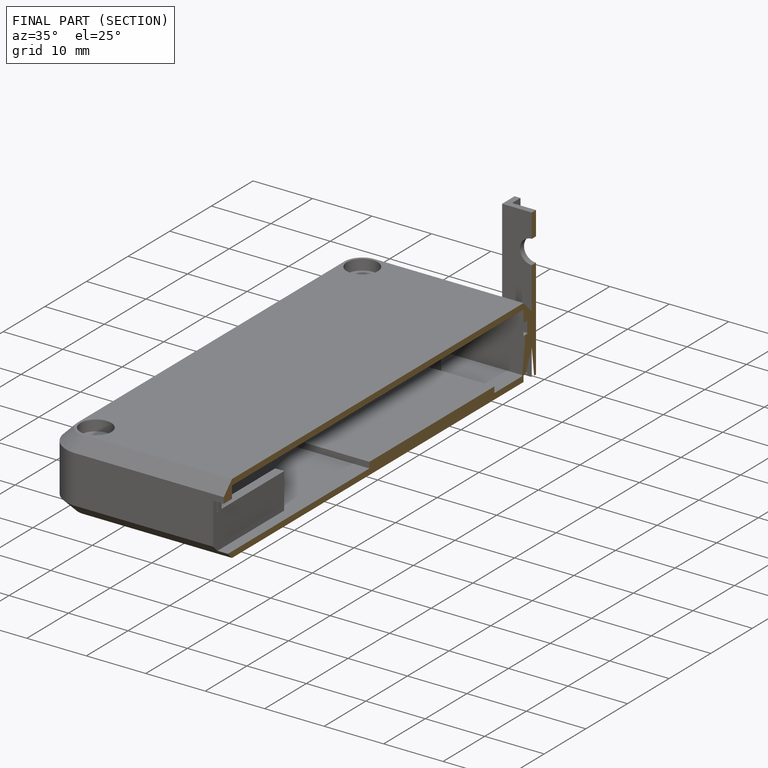
[diagram: finished part — half-section view (interior)]
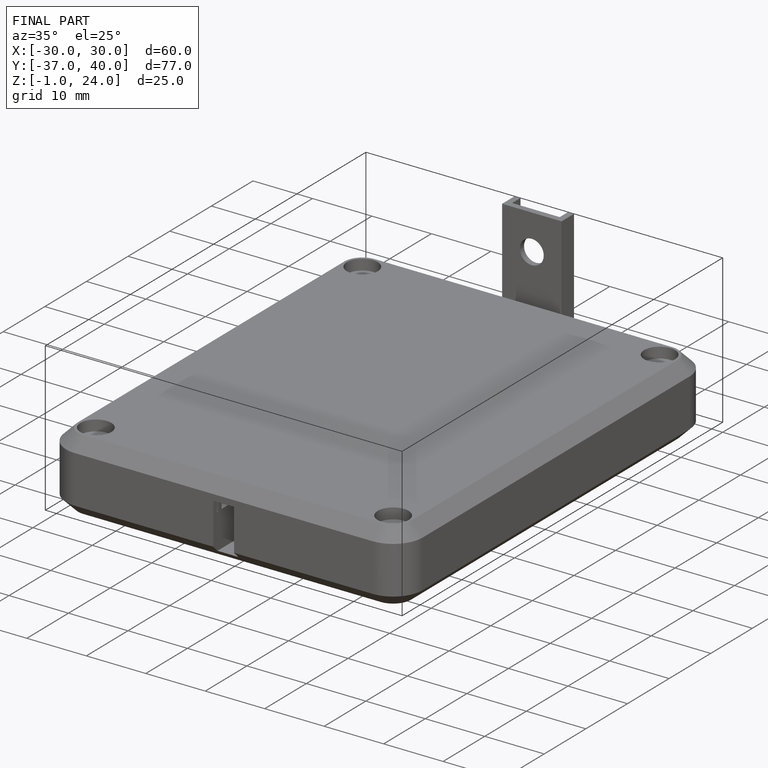
[diagram: finished part — iso view with bounding-box wireframe]
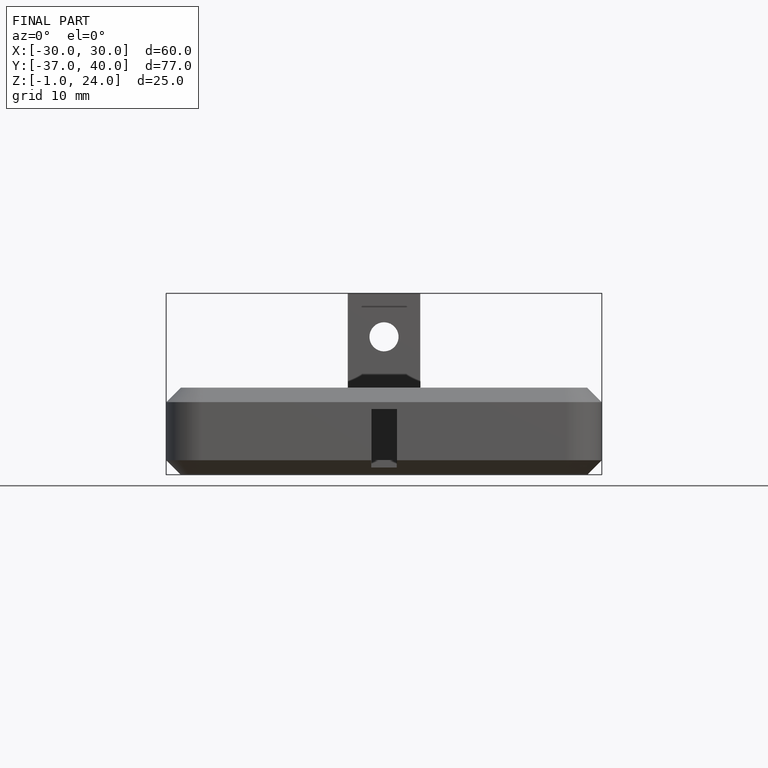
[diagram: finished part — front view with bounding-box wireframe]
